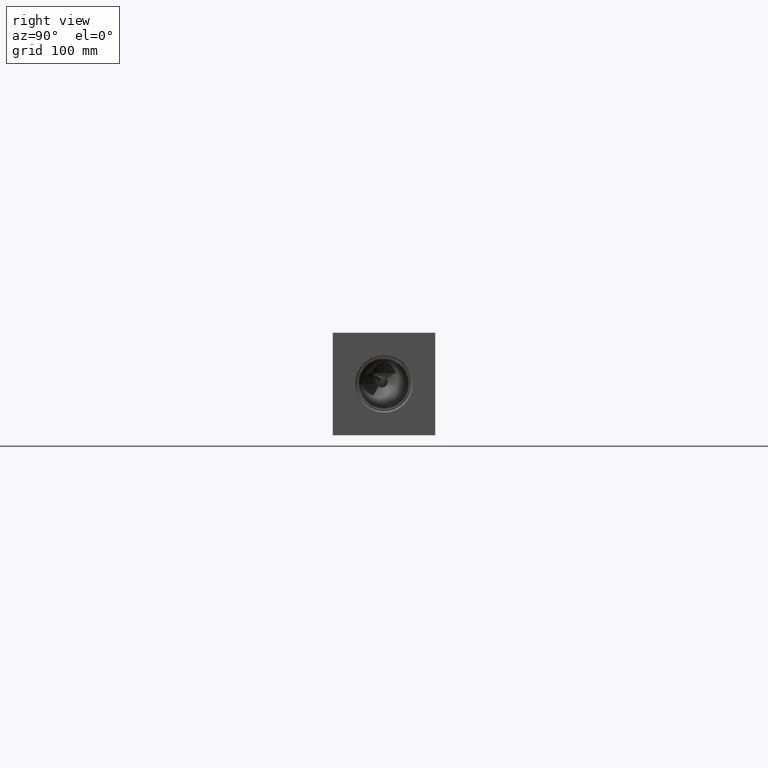
[diagram: clean part render]
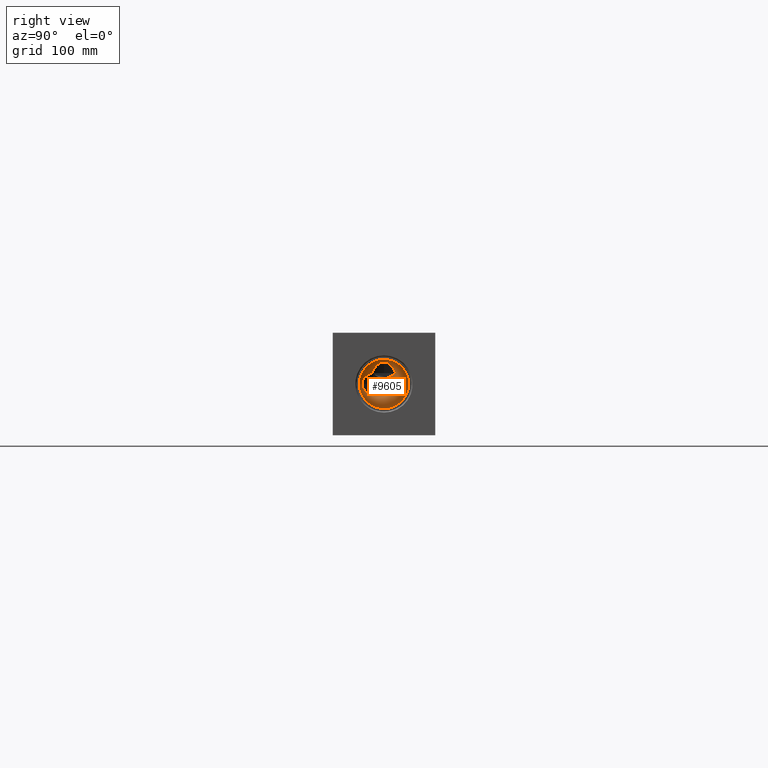
[diagram: same view with one face highlighted and labeled with its STEP entity id]
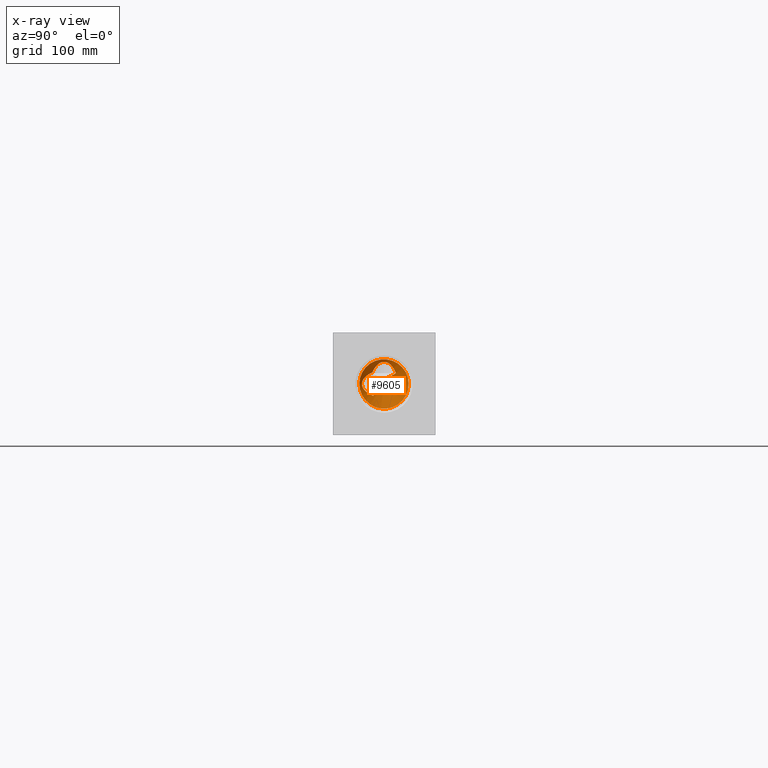
[diagram: x-ray of the same camera — body ghosted, the highlighted face saturated]
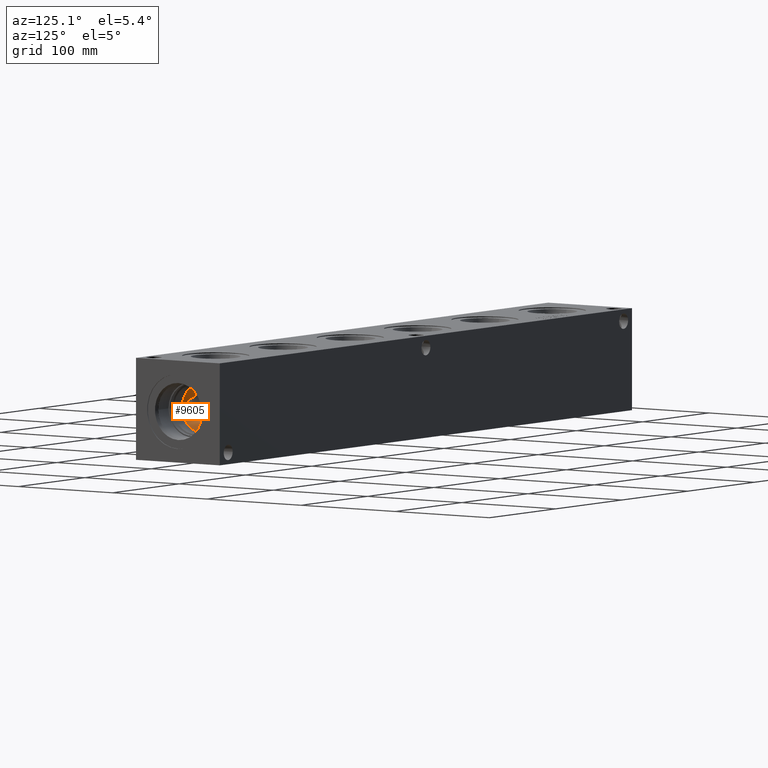
[diagram: same view with one face highlighted and labeled with its STEP entity id]
A machine part, right view. The second image highlights one B-rep face of the part: STEP entity #9605.
The next image is the same camera in x-ray: the body ghosted, the highlighted face saturated — about 0% of this face is hidden behind the body in this view.
A second angle (auxiliary view) of the same face is appended — the face is thin or edge-on in the first view.
In plain terms, the highlighted conical surface has half-angle 60 deg.
Its self-contained STEP definition (entity closure, byte-faithful):
#31=CONICAL_SURFACE('',#10099,10.7188,1.0471975511966);
#311=CIRCLE('',#10100,21.4376);
#312=CIRCLE('',#10101,21.4376);
#861=B_SPLINE_CURVE_WITH_KNOTS('',3,(#16386,#16387,#16388,#16389,#16390,
#16391,#16392,#16393,#16394,#16395,#16396,#16397),.UNSPECIFIED.,.F.,.F.,
(4,2,2,2,2,4),(5.72456670607484,5.86799814580526,6.20600852675308,6.5440189077009,
6.83306145733421,7.12210400696753),.UNSPECIFIED.);
#862=B_SPLINE_CURVE_WITH_KNOTS('',3,(#16399,#16400,#16401,#16402,#16403,
#16404,#16405,#16406,#16407,#16408,#16409,#16410),.UNSPECIFIED.,.F.,.F.,
(4,2,2,2,2,4),(7.12210400696753,7.41114655660084,7.70018910623416,8.03819948718198,
8.37620986812979,8.58616186641566),.UNSPECIFIED.);
#863=B_SPLINE_CURVE_WITH_KNOTS('',3,(#16414,#16415,#16416,#16417,#16418,
#16419,#16420,#16421),.UNSPECIFIED.,.F.,.F.,(4,2,2,4),(3.82502520633005,
3.98994951458757,4.43327723843064,5.02336071878951),.UNSPECIFIED.);
#872=B_SPLINE_CURVE_WITH_KNOTS('',3,(#16660,#16661,#16662,#16663,#16664,
#16665,#16666,#16667,#16668,#16669,#16670,#16671,#16672,#16673,#16674,#16675,
#16676,#16677,#16678,#16679,#16680,#16681),.UNSPECIFIED.,.F.,.F.,(4,2,2,
2,2,2,2,2,2,2,4),(5.65804614751939,5.86799814580526,6.20600852675308,6.54401890770089,
6.83306145733421,7.12210400696753,7.41114655660084,7.70018910623416,8.03819948718198,
8.3762098681298,8.51963872681092),.UNSPECIFIED.);
#873=B_SPLINE_CURVE_WITH_KNOTS('',3,(#16683,#16684,#16685,#16686,#16687,
#16688,#16689,#16690),.UNSPECIFIED.,.F.,.F.,(4,2,2,4),(2.06988286269951,
2.65996634305838,3.10329406690145,3.26821837515897),.UNSPECIFIED.);
#874=B_SPLINE_CURVE_WITH_KNOTS('',3,(#16692,#16693,#16694,#16695,#16696,
#16697,#16698,#16699),.UNSPECIFIED.,.F.,.F.,(4,2,2,4),(0.,0.161416140549687,
0.322832281099374,0.386966163109366),.UNSPECIFIED.);
#875=B_SPLINE_CURVE_WITH_KNOTS('',3,(#16701,#16702,#16703,#16704,#16705,
#16706,#16707,#16708),.UNSPECIFIED.,.F.,.F.,(4,2,2,4),(2.04220603554375,
2.08841826990744,2.22695394167587,2.3654896134443),.UNSPECIFIED.);
#876=B_SPLINE_CURVE_WITH_KNOTS('',3,(#16709,#16710,#16711,#16712,#16713,
#16714,#16715,#16716,#16717,#16718,#16719,#16720,#16721,#16722),
 .UNSPECIFIED.,.F.,.F.,(4,2,2,2,2,2,4),(0.963727082277223,1.02786096428721,
1.1892771048369,1.35069324538659,1.48922891715502,1.62776458892345,1.67397682012568),
 .UNSPECIFIED.);
#1351=FACE_OUTER_BOUND('',#1902,.T.);
#1902=EDGE_LOOP('',(#7854,#7855,#7856,#7857,#7858,#7859,#7860,#7861,#7862,
#7863,#7864,#7865));
#2755=LINE('',#16658,#3515);
#3515=VECTOR('',#11780,10.7188);
#4283=VERTEX_POINT('',#16383);
#4284=VERTEX_POINT('',#16385);
#4285=VERTEX_POINT('',#16398);
#4286=VERTEX_POINT('',#16413);
#4315=VERTEX_POINT('',#16655);
#4316=VERTEX_POINT('',#16656);
#4317=VERTEX_POINT('',#16659);
#4318=VERTEX_POINT('',#16682);
#4319=VERTEX_POINT('',#16691);
#4320=VERTEX_POINT('',#16700);
#5507=EDGE_CURVE('',#4283,#4284,#861,.T.);
#5508=EDGE_CURVE('',#4284,#4285,#862,.T.);
#5510=EDGE_CURVE('',#4286,#4285,#863,.T.);
#5558=EDGE_CURVE('',#4315,#4316,#311,.T.);
#5559=EDGE_CURVE('',#4316,#4284,#2755,.T.);
#5560=EDGE_CURVE('',#4317,#4283,#872,.T.);
#5561=EDGE_CURVE('',#4317,#4318,#873,.T.);
#5562=EDGE_CURVE('',#4319,#4318,#874,.T.);
#5563=EDGE_CURVE('',#4320,#4319,#875,.T.);
#5564=EDGE_CURVE('',#4286,#4320,#876,.T.);
#5565=EDGE_CURVE('',#4316,#4315,#312,.T.);
#7854=ORIENTED_EDGE('',*,*,#5558,.T.);
#7855=ORIENTED_EDGE('',*,*,#5559,.T.);
#7856=ORIENTED_EDGE('',*,*,#5507,.F.);
#7857=ORIENTED_EDGE('',*,*,#5560,.F.);
#7858=ORIENTED_EDGE('',*,*,#5561,.T.);
#7859=ORIENTED_EDGE('',*,*,#5562,.F.);
#7860=ORIENTED_EDGE('',*,*,#5563,.F.);
#7861=ORIENTED_EDGE('',*,*,#5564,.F.);
#7862=ORIENTED_EDGE('',*,*,#5510,.T.);
#7863=ORIENTED_EDGE('',*,*,#5508,.F.);
#7864=ORIENTED_EDGE('',*,*,#5559,.F.);
#7865=ORIENTED_EDGE('',*,*,#5565,.T.);
#9605=ADVANCED_FACE('',(#1351),#31,.F.);
#10099=AXIS2_PLACEMENT_3D('',#16654,#11776,#11777);
#10100=AXIS2_PLACEMENT_3D('',#16657,#11778,#11779);
#10101=AXIS2_PLACEMENT_3D('',#16723,#11781,#11782);
#11776=DIRECTION('center_axis',(1.,0.,0.));
#11777=DIRECTION('ref_axis',(0.,1.,0.));
#11778=DIRECTION('center_axis',(1.,0.,0.));
#11779=DIRECTION('ref_axis',(0.,1.,0.));
#11780=DIRECTION('',(-0.5,0.866025403784439,1.06057523872491E-16));
#11781=DIRECTION('center_axis',(1.,0.,0.));
#11782=DIRECTION('ref_axis',(0.,1.,0.));
#16383=CARTESIAN_POINT('',(581.345710036929,34.4199712662567,54.480028733744));
#16385=CARTESIAN_POINT('',(584.2,25.3216220981749,44.45));
#16386=CARTESIAN_POINT('Ctrl Pts',(581.345710036929,34.4199712662568,54.4800287337437));
#16387=CARTESIAN_POINT('Ctrl Pts',(581.456413331138,33.9700496161126,54.3012736672582));
#16388=CARTESIAN_POINT('Ctrl Pts',(581.569472975989,33.533487260374,54.1120541287196));
#16389=CARTESIAN_POINT('Ctrl Pts',(581.949319485886,32.122511820207,53.44852759946));
#16390=CARTESIAN_POINT('Ctrl Pts',(582.257713525749,31.0764675994803,52.8638820579872));
#16391=CARTESIAN_POINT('Ctrl Pts',(582.867366535572,29.1369300481692,51.4900429684462));
#16392=CARTESIAN_POINT('Ctrl Pts',(583.166971028151,28.2443670805116,50.6988031956831));
#16393=CARTESIAN_POINT('Ctrl Pts',(583.625559534201,26.9154297060635,49.1520454358924));
#16394=CARTESIAN_POINT('Ctrl Pts',(583.832153813471,26.3358280554377,48.2935260977443));
#16395=CARTESIAN_POINT('Ctrl Pts',(584.120829432664,25.5361425730145,46.4256536267811));
#16396=CARTESIAN_POINT('Ctrl Pts',(584.2,25.3216220981749,45.4134751654444));
#16397=CARTESIAN_POINT('Ctrl Pts',(584.2,25.3216220981749,44.45));
#16398=CARTESIAN_POINT('',(581.193426336425,35.05432,34.1781466430005));
#16399=CARTESIAN_POINT('Ctrl Pts',(584.2,25.3216220981749,44.45));
#16400=CARTESIAN_POINT('Ctrl Pts',(584.2,25.3216220981749,43.4865248345556));
#16401=CARTESIAN_POINT('Ctrl Pts',(584.120829432664,25.5361425730144,42.4743463732189));
#16402=CARTESIAN_POINT('Ctrl Pts',(583.832153813471,26.3358280554377,40.6064739022557));
#16403=CARTESIAN_POINT('Ctrl Pts',(583.625559534201,26.9154297060636,39.7479545641076));
#16404=CARTESIAN_POINT('Ctrl Pts',(583.166971028151,28.2443670805117,38.2011968043169));
#16405=CARTESIAN_POINT('Ctrl Pts',(582.867366535572,29.1369300481692,37.4099570315538));
#16406=CARTESIAN_POINT('Ctrl Pts',(582.257713525749,31.0764675994804,36.0361179420128));
#16407=CARTESIAN_POINT('Ctrl Pts',(581.949319485886,32.122511820207,35.45147240054));
#16408=CARTESIAN_POINT('Ctrl Pts',(581.516989787121,33.7284409813775,34.6962667660449));
#16409=CARTESIAN_POINT('Ctrl Pts',(581.351550062569,34.3785346806464,34.425117298077));
#16410=CARTESIAN_POINT('Ctrl Pts',(581.193426336425,35.05432,34.1781466430005));
#16413=CARTESIAN_POINT('',(576.313326337598,39.4756670375238,42.178907333388));
#16414=CARTESIAN_POINT('Ctrl Pts',(576.313326357653,39.4756670136075,42.1789073504875));
#16415=CARTESIAN_POINT('Ctrl Pts',(576.479075344271,39.3372314896286,41.7908852120715));
#16416=CARTESIAN_POINT('Ctrl Pts',(576.662053323613,39.1823226404211,41.421187825975));
#16417=CARTESIAN_POINT('Ctrl Pts',(577.376194817041,38.5688149099059,40.0688097713657));
#16418=CARTESIAN_POINT('Ctrl Pts',(577.958077161744,38.0523326244484,39.124336505341));
#16419=CARTESIAN_POINT('Ctrl Pts',(579.401430951373,36.7398680286058,36.8491229141053));
#16420=CARTESIAN_POINT('Ctrl Pts',(580.279204584774,35.9203147896928,35.5320153227366));
#16421=CARTESIAN_POINT('Ctrl Pts',(581.193426336425,35.05432,34.1781466430005));
#16654=CARTESIAN_POINT('Origin',(579.34472793461,44.45,44.45));
#16655=CARTESIAN_POINT('',(585.53323,65.8876,44.45));
#16656=CARTESIAN_POINT('',(585.53323,23.0124,44.45));
#16657=CARTESIAN_POINT('Origin',(585.53323,44.45,44.45));
#16658=CARTESIAN_POINT('',(579.34472793461,33.7312,44.45));
#16659=CARTESIAN_POINT('',(581.193426336425,54.7218533569996,53.84568));
#16660=CARTESIAN_POINT('Ctrl Pts',(581.193426336425,54.7218533569996,53.84568));
#16661=CARTESIAN_POINT('Ctrl Pts',(581.351550062569,54.474882701923,54.5214653193536));
#16662=CARTESIAN_POINT('Ctrl Pts',(581.516989787121,54.2037332339551,55.1715590186225));
#16663=CARTESIAN_POINT('Ctrl Pts',(581.949319485886,53.44852759946,56.777488179793));
#16664=CARTESIAN_POINT('Ctrl Pts',(582.257713525749,52.8638820579872,57.8235324005196));
#16665=CARTESIAN_POINT('Ctrl Pts',(582.867366535572,51.4900429684462,59.7630699518308));
#16666=CARTESIAN_POINT('Ctrl Pts',(583.166971028151,50.6988031956831,60.6556329194883));
#16667=CARTESIAN_POINT('Ctrl Pts',(583.625559534201,49.1520454358924,61.9845702939364));
#16668=CARTESIAN_POINT('Ctrl Pts',(583.832153813471,48.2935260977443,62.5641719445623));
#16669=CARTESIAN_POINT('Ctrl Pts',(584.120829432664,46.4256536267811,63.3638574269856));
#16670=CARTESIAN_POINT('Ctrl Pts',(584.2,45.4134751654444,63.5783779018251));
#16671=CARTESIAN_POINT('Ctrl Pts',(584.2,43.4865248345556,63.5783779018251));
#16672=CARTESIAN_POINT('Ctrl Pts',(584.120829432664,42.4743463732189,63.3638574269855));
#16673=CARTESIAN_POINT('Ctrl Pts',(583.832153813471,40.6064739022557,62.5641719445623));
#16674=CARTESIAN_POINT('Ctrl Pts',(583.625559534201,39.7479545641076,61.9845702939365));
#16675=CARTESIAN_POINT('Ctrl Pts',(583.166971028151,38.2011968043169,60.6556329194884));
#16676=CARTESIAN_POINT('Ctrl Pts',(582.867366535572,37.4099570315538,59.7630699518308));
#16677=CARTESIAN_POINT('Ctrl Pts',(582.257713525749,36.0361179420128,57.8235324005197));
#16678=CARTESIAN_POINT('Ctrl Pts',(581.949319485886,35.45147240054,56.777488179793));
#16679=CARTESIAN_POINT('Ctrl Pts',(581.569475012377,34.7879494285008,55.3665203039817));
#16680=CARTESIAN_POINT('Ctrl Pts',(581.456414128958,34.5987276209995,54.9299536263971));
#16681=CARTESIAN_POINT('Ctrl Pts',(581.345710036929,34.4199712662567,54.4800287337442));
#16682=CARTESIAN_POINT('',(576.313326337598,46.721092666612,49.4243329624762));
#16683=CARTESIAN_POINT('Ctrl Pts',(581.193426336425,54.7218533569995,53.84568));
#16684=CARTESIAN_POINT('Ctrl Pts',(580.279204584774,53.3679846772634,52.9796852103072));
#16685=CARTESIAN_POINT('Ctrl Pts',(579.401430951373,52.0508770858947,52.1601319713942));
#16686=CARTESIAN_POINT('Ctrl Pts',(577.958077161744,49.775663494659,50.8476673755515));
#16687=CARTESIAN_POINT('Ctrl Pts',(577.376194817041,48.8311902286343,50.331185090094));
#16688=CARTESIAN_POINT('Ctrl Pts',(576.662053323613,47.478812174025,49.7176773595789));
#16689=CARTESIAN_POINT('Ctrl Pts',(576.47907534427,47.1091147879285,49.5627685103714));
#16690=CARTESIAN_POINT('Ctrl Pts',(576.313326357653,46.7210926495126,49.4243329863925));
#16691=CARTESIAN_POINT('',(575.069980822133,47.5302907847075,45.6744111813585));
#16692=CARTESIAN_POINT('Ctrl Pts',(575.069980822133,47.5302907847075,45.6744111813585));
#16693=CARTESIAN_POINT('Ctrl Pts',(575.202975326754,47.571587411621,46.1941312444813));
#16694=CARTESIAN_POINT('Ctrl Pts',(575.369617716743,47.5460603392215,46.7574267557703));
#16695=CARTESIAN_POINT('Ctrl Pts',(575.728785384367,47.3616711071339,47.8542414949243));
#16696=CARTESIAN_POINT('Ctrl Pts',(575.92047945511,47.2033470190233,48.3881231169952));
#16697=CARTESIAN_POINT('Ctrl Pts',(576.165570823208,46.9229255474366,49.0412291525989));
#16698=CARTESIAN_POINT('Ctrl Pts',(576.239427141478,46.8290013256957,49.2343593027166));
#16699=CARTESIAN_POINT('Ctrl Pts',(576.313326343767,46.721092667867,49.4243329515726));
#16700=CARTESIAN_POINT('',(574.581319920709,46.1953766182451,42.7046233584582));
#16701=CARTESIAN_POINT('Ctrl Pts',(574.581319919787,46.1953766179938,42.7046233586288));
#16702=CARTESIAN_POINT('Ctrl Pts',(574.587661103541,46.3163071142228,42.8100211887804));
#16703=CARTESIAN_POINT('Ctrl Pts',(574.595813240069,46.4274608690476,42.9234968382223));
#16704=CARTESIAN_POINT('Ctrl Pts',(574.635819635483,46.8276671834926,43.3898405871958));
#16705=CARTESIAN_POINT('Ctrl Pts',(574.688463599755,47.0710029810663,43.822727892061));
#16706=CARTESIAN_POINT('Ctrl Pts',(574.848491528854,47.4039415936423,44.7422208751765));
#16707=CARTESIAN_POINT('Ctrl Pts',(574.95583806679,47.494847885802,45.2283605706137));
#16708=CARTESIAN_POINT('Ctrl Pts',(575.069980822133,47.5302907847075,45.6744111813584));
#16709=CARTESIAN_POINT('Ctrl Pts',(576.313326343767,39.4756670484274,42.178907332133));
#16710=CARTESIAN_POINT('Ctrl Pts',(576.239427141478,39.6656406972834,42.0709986743043));
#16711=CARTESIAN_POINT('Ctrl Pts',(576.165570823208,39.8587708474011,41.9770744525634));
#16712=CARTESIAN_POINT('Ctrl Pts',(575.92047945511,40.5118768830048,41.6966529809767));
#16713=CARTESIAN_POINT('Ctrl Pts',(575.728785384367,41.0457585050758,41.5383288928661));
#16714=CARTESIAN_POINT('Ctrl Pts',(575.369617716743,42.1425732442297,41.3539396607786));
#16715=CARTESIAN_POINT('Ctrl Pts',(575.202975326754,42.7058687555187,41.328412588379));
#16716=CARTESIAN_POINT('Ctrl Pts',(574.95583806679,43.6716394293863,41.405152114198));
#16717=CARTESIAN_POINT('Ctrl Pts',(574.848491528854,44.1577791248236,41.4960584063576));
#16718=CARTESIAN_POINT('Ctrl Pts',(574.688463599755,45.0772721079391,41.8289970189337));
#16719=CARTESIAN_POINT('Ctrl Pts',(574.635819635483,45.5101594128043,42.0723328165075));
#16720=CARTESIAN_POINT('Ctrl Pts',(574.595813240754,45.9765031537975,42.472539124104));
#16721=CARTESIAN_POINT('Ctrl Pts',(574.587661104651,46.0899787957009,42.5836928705531));
#16722=CARTESIAN_POINT('Ctrl Pts',(574.581319921089,46.195376619734,42.7046233571804));
#16723=CARTESIAN_POINT('Origin',(585.53323,44.45,44.45));